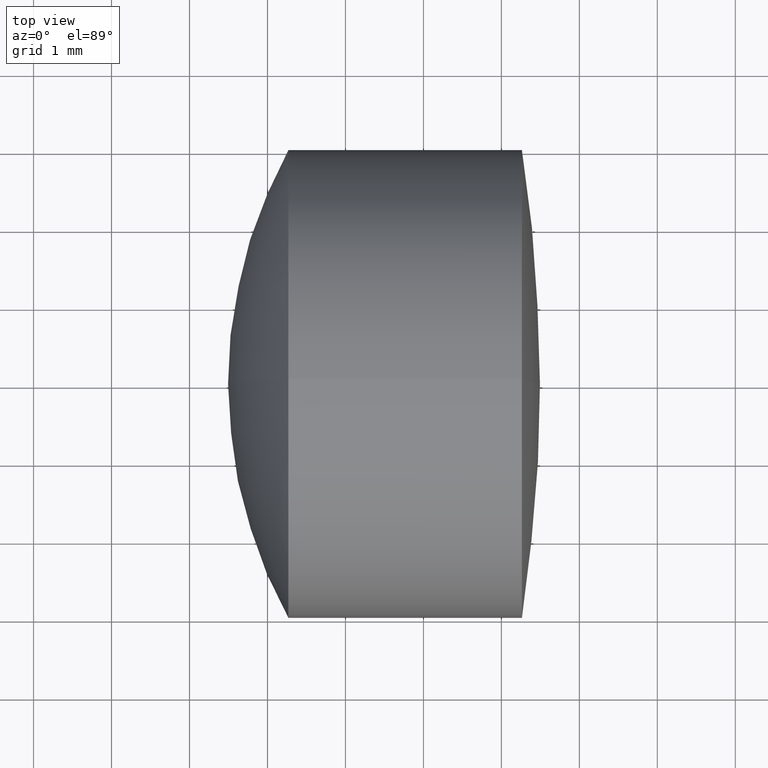
[diagram: clean part render]
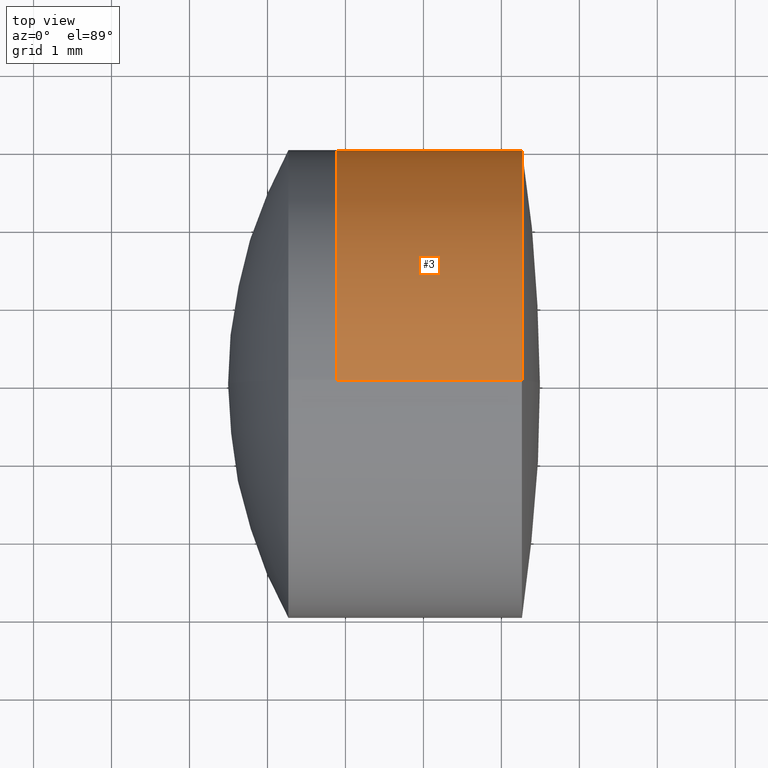
[diagram: same view with one face highlighted and labeled with its STEP entity id]
A machine part, top view. The second image highlights one B-rep face of the part: STEP entity #3.
In plain terms, the highlighted cylindrical surface (partial cylindrical patch) has radius 3 mm, axis along (-1, -0, -0).
Its self-contained STEP definition (entity closure, byte-faithful):
#1 = CARTESIAN_POINT ( 'NONE',  ( 2.881554070428458600, 0.0000000000000000000, 0.0000000000000000000 ) ) ;
#3 = ADVANCED_FACE ( 'NONE', ( #130 ), #185, .T. ) ;
#7 = ORIENTED_EDGE ( 'NONE', *, *, #293, .F. ) ;
#59 = LINE ( 'NONE', #161, #288 ) ;
#61 = CARTESIAN_POINT ( 'NONE',  ( -0.5519199926577972300, 0.0000000000000000000, 0.0000000000000000000 ) ) ;
#63 = VECTOR ( 'NONE', #216, 1000.000000000000000 ) ;
#68 = CIRCLE ( 'NONE', #289, 2.999999999999998700 ) ;
#78 = ORIENTED_EDGE ( 'NONE', *, *, #279, .F. ) ;
#80 = EDGE_CURVE ( 'NONE', #131, #206, #59, .T. ) ;
#84 = DIRECTION ( 'NONE',  ( -1.000000000000000000, -0.0000000000000000000, -0.0000000000000000000 ) ) ;
#98 = DIRECTION ( 'NONE',  ( -1.000000000000000000, -0.0000000000000000000, -0.0000000000000000000 ) ) ;
#117 = AXIS2_PLACEMENT_3D ( 'NONE', #307, #299, #286 ) ;
#121 = ORIENTED_EDGE ( 'NONE', *, *, #80, .T. ) ;
#130 = FACE_OUTER_BOUND ( 'NONE', #157, .T. ) ;
#131 = VERTEX_POINT ( 'NONE', #262 ) ;
#142 = CARTESIAN_POINT ( 'NONE',  ( 2.881554070428458600, 0.0000000000000000000, 2.999999999999998200 ) ) ;
#146 = ORIENTED_EDGE ( 'NONE', *, *, #220, .T. ) ;
#155 = CIRCLE ( 'NONE', #117, 2.999999999999997800 ) ;
#157 = EDGE_LOOP ( 'NONE', ( #146, #121, #7, #78 ) ) ;
#161 = CARTESIAN_POINT ( 'NONE',  ( -0.5519199926577972300, 3.673940397442057900E-016, -2.999999999999998200 ) ) ;
#169 = AXIS2_PLACEMENT_3D ( 'NONE', #61, #84, #251 ) ;
#185 = CYLINDRICAL_SURFACE ( 'NONE', #169, 2.999999999999998200 ) ;
#200 = VERTEX_POINT ( 'NONE', #322 ) ;
#206 = VERTEX_POINT ( 'NONE', #347 ) ;
#208 = CARTESIAN_POINT ( 'NONE',  ( -0.5519199926577972300, 0.0000000000000000000, 2.999999999999998200 ) ) ;
#216 = DIRECTION ( 'NONE',  ( -1.000000000000000000, -0.0000000000000000000, -0.0000000000000000000 ) ) ;
#220 = EDGE_CURVE ( 'NONE', #200, #131, #155, .T. ) ;
#238 = DIRECTION ( 'NONE',  ( -1.000000000000000000, -0.0000000000000000000, -0.0000000000000000000 ) ) ;
#251 = DIRECTION ( 'NONE',  ( 0.0000000000000000000, 0.0000000000000000000, 1.000000000000000000 ) ) ;
#254 = LINE ( 'NONE', #208, #63 ) ;
#261 = DIRECTION ( 'NONE',  ( 0.0000000000000000000, 0.0000000000000000000, 1.000000000000000000 ) ) ;
#262 = CARTESIAN_POINT ( 'NONE',  ( 5.263482388303502000, 3.673940397442057400E-016, -2.999999999999997800 ) ) ;
#279 = EDGE_CURVE ( 'NONE', #200, #308, #254, .T. ) ;
#286 = DIRECTION ( 'NONE',  ( 0.0000000000000000000, 0.0000000000000000000, 1.000000000000000000 ) ) ;
#288 = VECTOR ( 'NONE', #238, 1000.000000000000000 ) ;
#289 = AXIS2_PLACEMENT_3D ( 'NONE', #1, #98, #261 ) ;
#293 = EDGE_CURVE ( 'NONE', #308, #206, #68, .T. ) ;
#299 = DIRECTION ( 'NONE',  ( -1.000000000000000000, -0.0000000000000000000, -0.0000000000000000000 ) ) ;
#307 = CARTESIAN_POINT ( 'NONE',  ( 5.263482388303502000, 0.0000000000000000000, 0.0000000000000000000 ) ) ;
#308 = VERTEX_POINT ( 'NONE', #142 ) ;
#322 = CARTESIAN_POINT ( 'NONE',  ( 5.263482388303502000, 0.0000000000000000000, 2.999999999999997800 ) ) ;
#347 = CARTESIAN_POINT ( 'NONE',  ( 2.881554070428458600, 3.673940397442058400E-016, -2.999999999999998200 ) ) ;